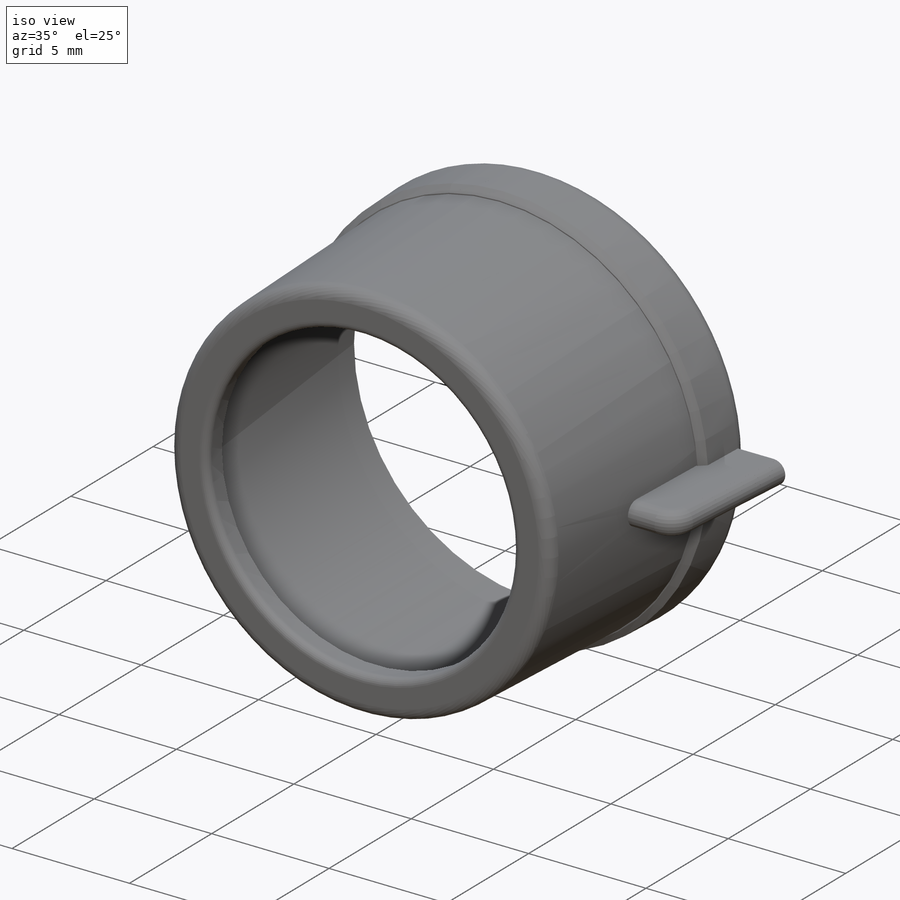
[diagram: iso view]
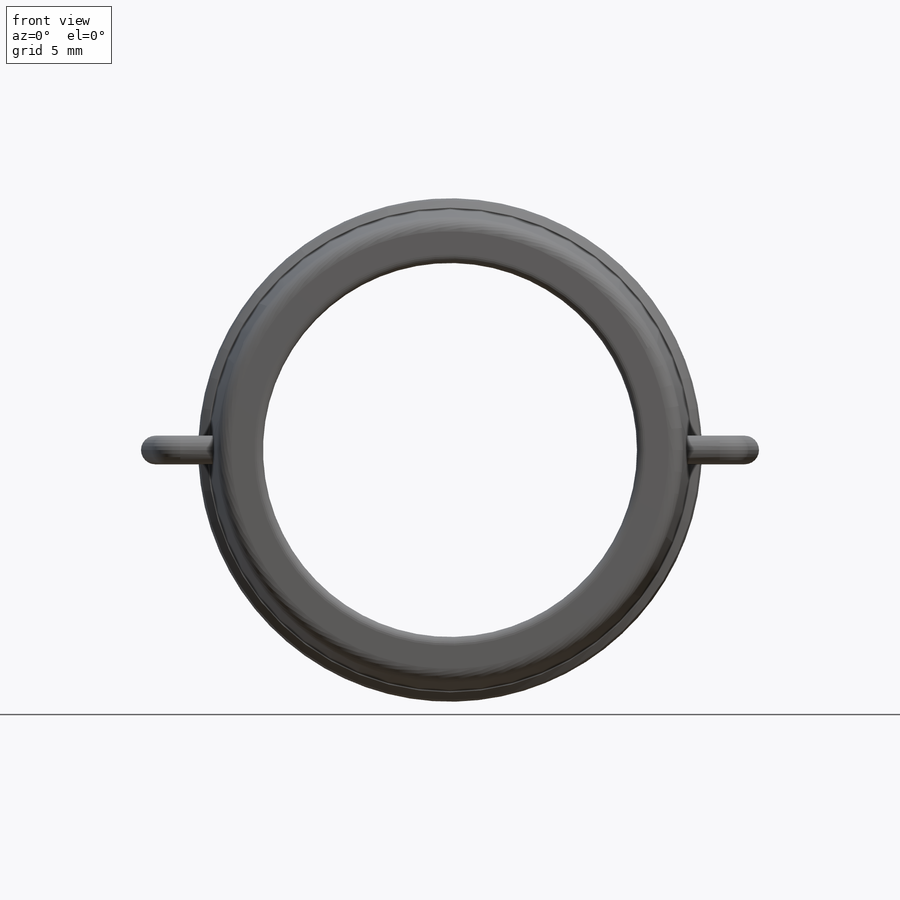
[diagram: front view]
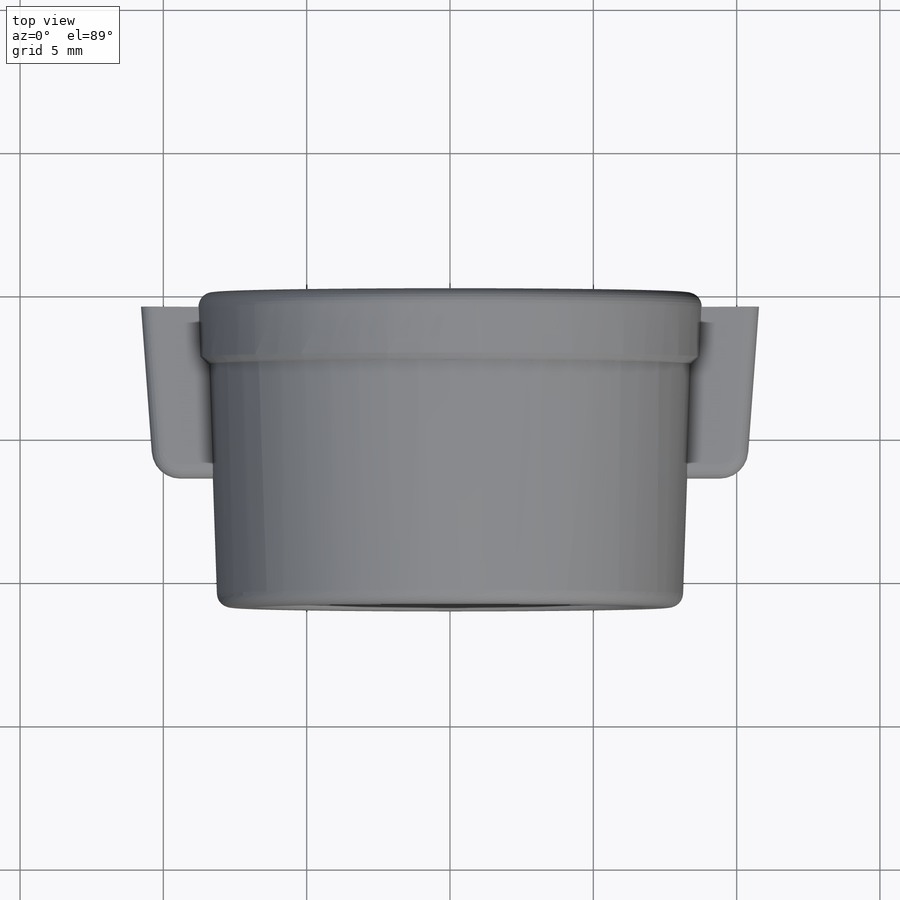
[diagram: top view]
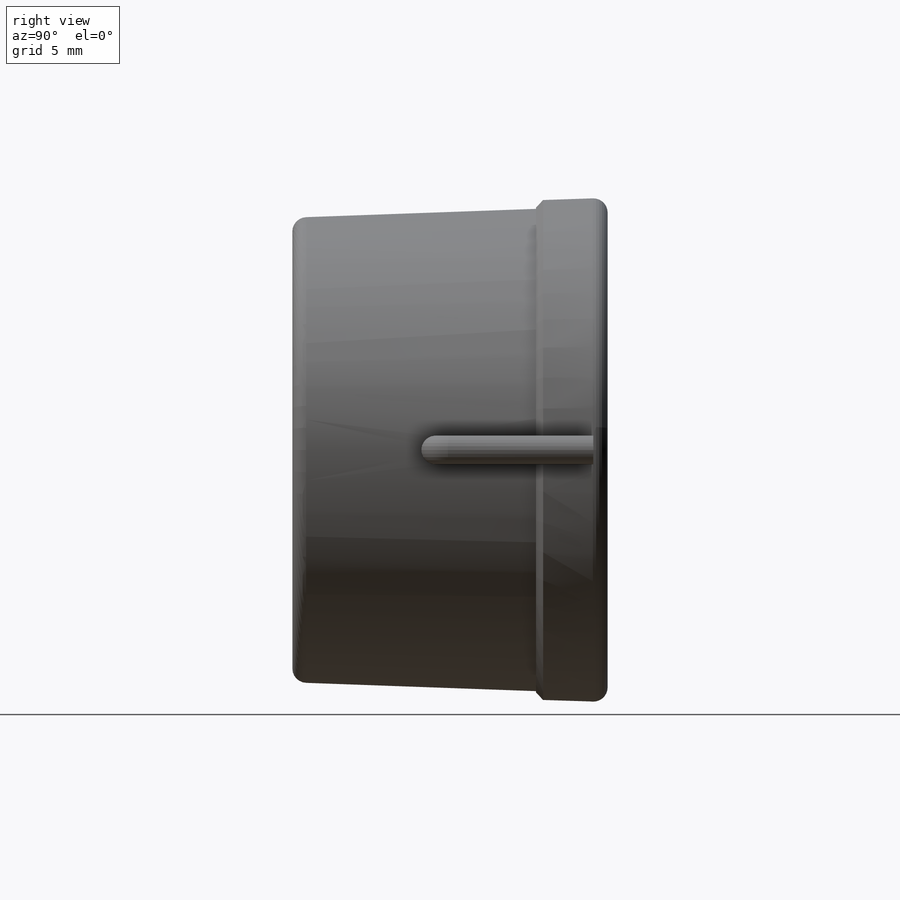
[diagram: right view]
SOLIDWORKS PART (.sldprt)
format: sldprt  version: not decoded by parser v0  size: 303,616 bytes
history: native  units: mm
features: sketch x5, plane x3, fillet x3, extrude x2, chamfer x2, cut_extrude x2, material x1, revolve x1 (+13 scaffold rows collapsed)
feature tree (32):
  scaffold x13  (default folders/planes/origin — collapsed)
  material  "Материал <не указан>"
  plane  "Спереди"
  plane  "Сверху"
  plane  "Справа"
  sketch  "Эскиз1"  dims[D1=17.0mm]
  extrude  "Бобышка-Вытянуть1"  Depth=11mm
  sketch  "Эскиз2"  dims[D1=2.5mm D2=0.3mm D3=~2.502953mm D4=~0.299911mm]
  revolve  "Повернуть1"  Angle=360deg
  chamfer  "Фаска1"  Distance=0.25mm Angle=45deg
  sketch  "Эскиз3"  dims[D1=13.0mm]
  cut_extrude  "Вырез-Вытянуть1"  Depth=11mm
  fillet  "Скругление1"  Radius=0.5mm
  sketch  "Эскиз5"  dims[c1.D6=1.0mm c1.D1=1.7mm c1.D2=6.0mm c2.D1=3.0mm c2.D3=~7.780712mm c2.D4=~5.98245mm c2.D5=~6.016049mm c3.D5=~85.44175deg]
  extrude  "Бобышка-Вытянуть2"  Depth=1mm
  fillet  "Скругление2"  Radius=0.5mm
  sketch  "Эскиз6"  dims[c1.D1=~12.761079mm c1.D2=~15.597646mm c2.D1=0.5mm]
  cut_extrude  "Вырез-Вытянуть2"  Depth=10mm
  fillet  "Скругление3"  Radius=0.3mm
  chamfer  "Фаска3"  Distance=0.2mm Angle=45deg
decode coverage: 15 of 15 modeling features carry decoded parameters
note: ~ marks probable driven/reference dimensions
note: suppression state not decoded; provenance and decode notes live in map.json
